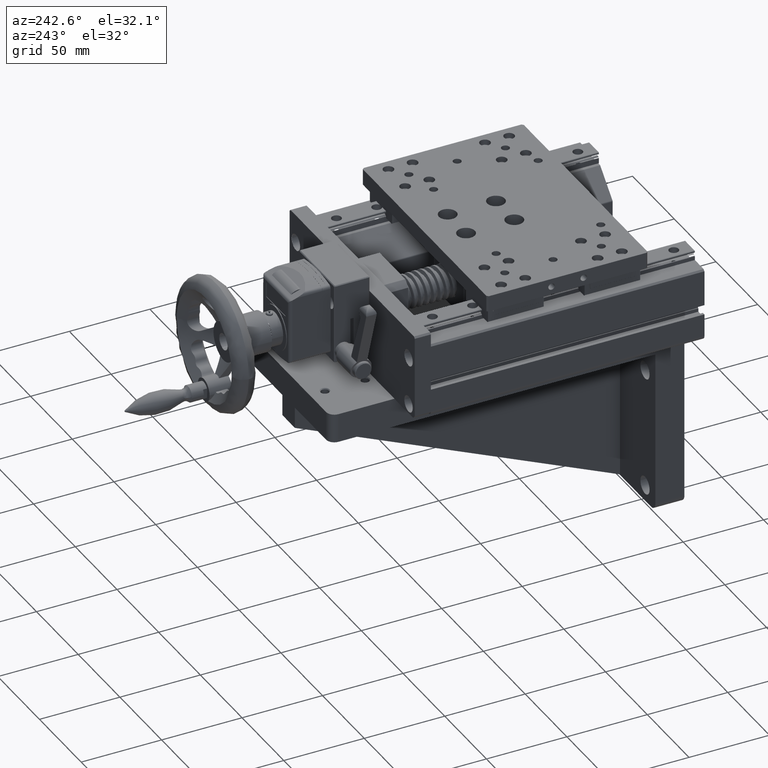
[diagram: clean part render]
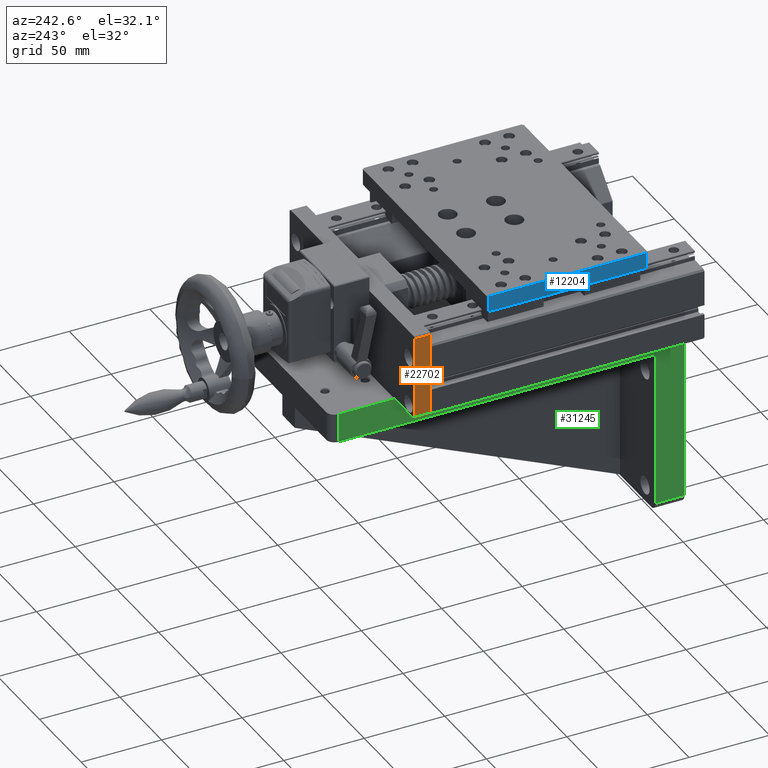
[diagram: same view with three faces highlighted in distinct colors, each labeled with its STEP entity id]
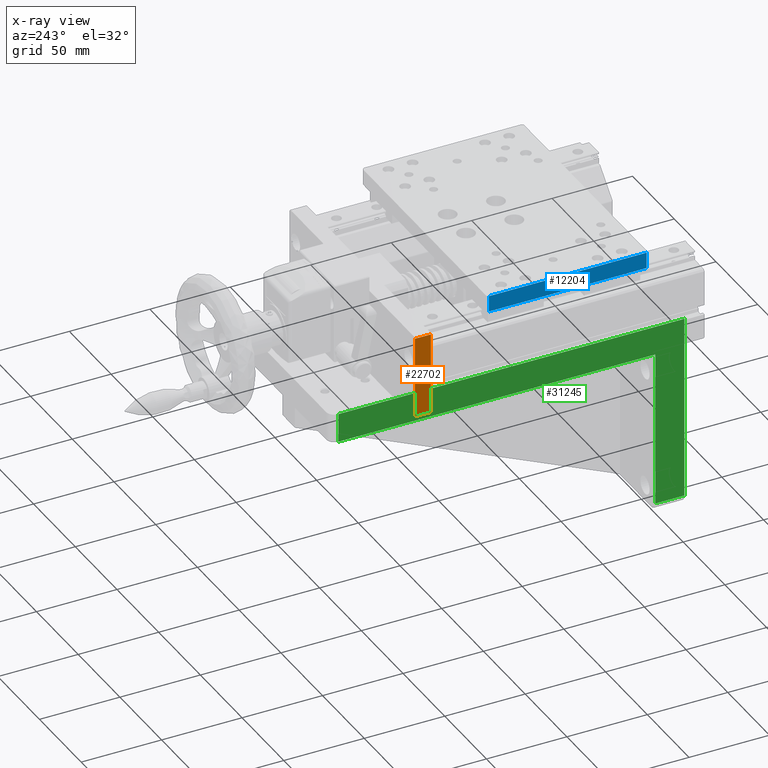
[diagram: x-ray of the same camera — body ghosted, the three highlighted faces saturated]
A machine part, auxiliary view with three faces highlighted in distinct colors.
The next image is the same camera in x-ray (body ghosted, the three faces saturated) — at least one of them is partly hidden behind the body in this view.
Their STEP definitions:

[orange] entity #22702 — the highlighted planar face has unit normal (1, -0, -0).
#351 = LINE ( 'NONE', #25956, #30585 ) ;
#1825 = CARTESIAN_POINT ( 'NONE',  ( -98.07974840947392181, 55.78653025440394941, 113.0000000000066507 ) ) ;
#3375 = LINE ( 'NONE', #11301, #24114 ) ;
#4613 = EDGE_CURVE ( 'NONE', #12254, #27577, #3375, .T. ) ;
#4894 = DIRECTION ( 'NONE',  ( 1.168057872504559325E-13, -2.402889340614262620E-16, 1.000000000000000000 ) ) ;
#5299 = CARTESIAN_POINT ( 'NONE',  ( -98.07974840947983353, 65.78653025440397073, 62.50000000001065814 ) ) ;
#5486 = CARTESIAN_POINT ( 'NONE',  ( -98.07974840947983353, 65.78653025440397073, 62.50000000001065814 ) ) ;
#6080 = EDGE_LOOP ( 'NONE', ( #14669, #21399, #23317, #12963 ) ) ;
#6585 = EDGE_CURVE ( 'NONE', #12254, #21139, #10415, .T. ) ;
#7882 = DIRECTION ( 'NONE',  ( 8.967242173589449006E-16, 1.000000000000000000, 3.823650429959166134E-16 ) ) ;
#9394 = VECTOR ( 'NONE', #7882, 1000.000000000000000 ) ;
#10415 = LINE ( 'NONE', #20692, #9394 ) ;
#10553 = CARTESIAN_POINT ( 'NONE',  ( -98.07974840947392181, 65.78653025440395652, 113.0000000000066507 ) ) ;
#11040 = VECTOR ( 'NONE', #12727, 1000.000000000000000 ) ;
#11301 = CARTESIAN_POINT ( 'NONE',  ( -98.07974840947983353, 55.78653025440396362, 62.50000000001065814 ) ) ;
#12254 = VERTEX_POINT ( 'NONE', #1825 ) ;
#12618 = DIRECTION ( 'NONE',  ( 8.967242173589449006E-16, 1.000000000000000000, 3.823650429959166134E-16 ) ) ;
#12622 = PLANE ( 'NONE',  #27832 ) ;
#12727 = DIRECTION ( 'NONE',  ( -1.168057872504559325E-13, 2.402889340614262620E-16, -1.000000000000000000 ) ) ;
#12963 = ORIENTED_EDGE ( 'NONE', *, *, #6585, .T. ) ;
#14669 = ORIENTED_EDGE ( 'NONE', *, *, #21144, .T. ) ;
#17386 = FACE_OUTER_BOUND ( 'NONE', #6080, .T. ) ;
#19194 = VERTEX_POINT ( 'NONE', #5299 ) ;
#19922 = DIRECTION ( 'NONE',  ( 1.000000000000000000, -6.306254620285602383E-16, -1.168057872504559325E-13 ) ) ;
#20692 = CARTESIAN_POINT ( 'NONE',  ( -98.07974840947392181, 55.78653025440394941, 113.0000000000066507 ) ) ;
#20834 = LINE ( 'NONE', #5486, #11040 ) ;
#21139 = VERTEX_POINT ( 'NONE', #10553 ) ;
#21144 = EDGE_CURVE ( 'NONE', #21139, #19194, #20834, .T. ) ;
#21399 = ORIENTED_EDGE ( 'NONE', *, *, #26273, .F. ) ;
#21589 = DIRECTION ( 'NONE',  ( -1.168057872504559325E-13, 2.402889340614262620E-16, -1.000000000000000000 ) ) ;
#22702 = ADVANCED_FACE ( 'NONE', ( #17386 ), #12622, .F. ) ;
#23317 = ORIENTED_EDGE ( 'NONE', *, *, #4613, .F. ) ;
#24114 = VECTOR ( 'NONE', #21589, 1000.000000000000000 ) ;
#25956 = CARTESIAN_POINT ( 'NONE',  ( -98.07974840947983353, 55.78653025440396362, 62.50000000001065814 ) ) ;
#26273 = EDGE_CURVE ( 'NONE', #27577, #19194, #351, .T. ) ;
#27577 = VERTEX_POINT ( 'NONE', #31188 ) ;
#27832 = AXIS2_PLACEMENT_3D ( 'NONE', #30522, #19922, #4894 ) ;
#30522 = CARTESIAN_POINT ( 'NONE',  ( -98.07974840947983353, 55.78653025440396362, 62.50000000001065814 ) ) ;
#30585 = VECTOR ( 'NONE', #12618, 1000.000000000000000 ) ;
#31188 = CARTESIAN_POINT ( 'NONE',  ( -98.07974840947983353, 55.78653025440396362, 62.50000000001065814 ) ) ;

[blue] entity #12204 — the highlighted planar face has unit normal (-1, 0, 0).
#381 = CARTESIAN_POINT ( 'NONE',  ( -98.07974840947704820, -17.21346974559805076, 122.5000000000011369 ) ) ;
#623 = CARTESIAN_POINT ( 'NONE',  ( -98.07974840947704820, -19.21346974559804721, 122.5000000000011795 ) ) ;
#1111 = LINE ( 'NONE', #3134, #22504 ) ;
#1163 = CARTESIAN_POINT ( 'NONE',  ( -98.07974840947710504, -78.21346974088609727, 117.5000000000011795 ) ) ;
#1459 = DIRECTION ( 'NONE',  ( 0.000000000000000000, -1.000000000000000000, 0.000000000000000000 ) ) ;
#1983 = FACE_BOUND ( 'NONE', #24734, .T. ) ;
#2120 = VERTEX_POINT ( 'NONE', #10566 ) ;
#2124 = ORIENTED_EDGE ( 'NONE', *, *, #9405, .F. ) ;
#2910 = EDGE_CURVE ( 'NONE', #5080, #22969, #10086, .T. ) ;
#3134 = CARTESIAN_POINT ( 'NONE',  ( -98.07974840947700557, 20.78653025440195989, 127.5000000000011937 ) ) ;
#3312 = EDGE_CURVE ( 'NONE', #30294, #13736, #1111, .T. ) ;
#3704 = DIRECTION ( 'NONE',  ( -1.007490921181384814E-16, -1.000000000000000000, -1.283222775569893497E-16 ) ) ;
#4329 = FACE_OUTER_BOUND ( 'NONE', #8429, .T. ) ;
#5080 = VERTEX_POINT ( 'NONE', #19015 ) ;
#6274 = EDGE_CURVE ( 'NONE', #15080, #2120, #23635, .T. ) ;
#6946 = ORIENTED_EDGE ( 'NONE', *, *, #19906, .F. ) ;
#7344 = DIRECTION ( 'NONE',  ( -1.000000000000000000, 1.007490921181371502E-16, 1.038393218549974683E-14 ) ) ;
#8429 = EDGE_LOOP ( 'NONE', ( #30055, #30338, #12374, #26933 ) ) ;
#8736 = CARTESIAN_POINT ( 'NONE',  ( -98.07974840947704820, -37.21346974559804721, 122.5000000000011369 ) ) ;
#9234 = DIRECTION ( 'NONE',  ( -1.000000000000000000, -7.380583014590811651E-17, 1.038393218549974683E-14 ) ) ;
#9405 = EDGE_CURVE ( 'NONE', #22969, #5080, #32047, .T. ) ;
#9497 = CIRCLE ( 'NONE', #24048, 1.999999999999994893 ) ;
#10086 = CIRCLE ( 'NONE', #12765, 1.999999999999994893 ) ;
#10274 = CARTESIAN_POINT ( 'NONE',  ( -98.07974840947700557, -78.21346974088609727, 127.5000000000011653 ) ) ;
#10566 = CARTESIAN_POINT ( 'NONE',  ( -98.07974840947710504, -78.21346974088609727, 117.5000000000011795 ) ) ;
#10891 = DIRECTION ( 'NONE',  ( 0.000000000000000000, -1.000000000000000000, 0.000000000000000000 ) ) ;
#11031 = EDGE_CURVE ( 'NONE', #30294, #15080, #19284, .T. ) ;
#11122 = VECTOR ( 'NONE', #31391, 1000.000000000000000 ) ;
#11419 = DIRECTION ( 'NONE',  ( 1.035198053686898557E-14, -1.283222775570023906E-16, 1.000000000000000000 ) ) ;
#11542 = CARTESIAN_POINT ( 'NONE',  ( -98.07974840947710504, 19.78653024969000640, 117.5000000000011937 ) ) ;
#12156 = AXIS2_PLACEMENT_3D ( 'NONE', #623, #23400, #10891 ) ;
#12204 = ADVANCED_FACE ( 'NONE', ( #1983, #22056, #4329 ), #14575, .T. ) ;
#12374 = ORIENTED_EDGE ( 'NONE', *, *, #6274, .T. ) ;
#12765 = AXIS2_PLACEMENT_3D ( 'NONE', #29849, #17048, #19408 ) ;
#13736 = VERTEX_POINT ( 'NONE', #10274 ) ;
#13751 = CIRCLE ( 'NONE', #12156, 1.999999999999994893 ) ;
#13837 = CARTESIAN_POINT ( 'NONE',  ( -98.07974840947710504, 19.78653024969000640, 117.5000000000011937 ) ) ;
#14575 = PLANE ( 'NONE',  #25187 ) ;
#14826 = VERTEX_POINT ( 'NONE', #30274 ) ;
#15080 = VERTEX_POINT ( 'NONE', #11542 ) ;
#15474 = EDGE_CURVE ( 'NONE', #2120, #13736, #32136, .T. ) ;
#15664 = ORIENTED_EDGE ( 'NONE', *, *, #2910, .F. ) ;
#17048 = DIRECTION ( 'NONE',  ( -1.000000000000000000, -7.380583014590811651E-17, 1.038393218549974683E-14 ) ) ;
#18568 = ORIENTED_EDGE ( 'NONE', *, *, #22026, .F. ) ;
#18721 = CARTESIAN_POINT ( 'NONE',  ( -98.07974840947710504, 20.78653025440195989, 117.5000000000011937 ) ) ;
#18794 = DIRECTION ( 'NONE',  ( -1.007490921181384814E-16, -1.000000000000000000, -1.283222775569893497E-16 ) ) ;
#19015 = CARTESIAN_POINT ( 'NONE',  ( -98.07974840947704820, -41.21346974559804011, 122.5000000000011795 ) ) ;
#19284 = LINE ( 'NONE', #13837, #11122 ) ;
#19408 = DIRECTION ( 'NONE',  ( 0.000000000000000000, -1.000000000000000000, 0.000000000000000000 ) ) ;
#19531 = DIRECTION ( 'NONE',  ( 0.000000000000000000, -1.000000000000000000, 0.000000000000000000 ) ) ;
#19906 = EDGE_CURVE ( 'NONE', #14826, #30207, #13751, .T. ) ;
#21836 = CARTESIAN_POINT ( 'NONE',  ( -98.07974840947704820, -39.21346974559804011, 122.5000000000011795 ) ) ;
#22026 = EDGE_CURVE ( 'NONE', #30207, #14826, #9497, .T. ) ;
#22056 = FACE_BOUND ( 'NONE', #32258, .T. ) ;
#22169 = DIRECTION ( 'NONE',  ( -1.000000000000000000, -7.380583014590811651E-17, 1.038393218549974683E-14 ) ) ;
#22389 = AXIS2_PLACEMENT_3D ( 'NONE', #21836, #22169, #1459 ) ;
#22504 = VECTOR ( 'NONE', #18794, 1000.000000000000000 ) ;
#22969 = VERTEX_POINT ( 'NONE', #8736 ) ;
#23400 = DIRECTION ( 'NONE',  ( -1.000000000000000000, -7.380583014590811651E-17, 1.038393218549974683E-14 ) ) ;
#23635 = LINE ( 'NONE', #18721, #26216 ) ;
#24048 = AXIS2_PLACEMENT_3D ( 'NONE', #32319, #9234, #19531 ) ;
#24734 = EDGE_LOOP ( 'NONE', ( #6946, #18568 ) ) ;
#25073 = CARTESIAN_POINT ( 'NONE',  ( -98.07974840947710504, 20.78653025440195989, 117.5000000000011937 ) ) ;
#25187 = AXIS2_PLACEMENT_3D ( 'NONE', #25073, #7344, #27787 ) ;
#26216 = VECTOR ( 'NONE', #3704, 1000.000000000000000 ) ;
#26933 = ORIENTED_EDGE ( 'NONE', *, *, #15474, .T. ) ;
#27787 = DIRECTION ( 'NONE',  ( -1.007490921181384814E-16, -1.000000000000000000, -1.283222775569893497E-16 ) ) ;
#29266 = VECTOR ( 'NONE', #11419, 1000.000000000000000 ) ;
#29345 = CARTESIAN_POINT ( 'NONE',  ( -98.07974840947700557, 19.78653024969000640, 127.5000000000011937 ) ) ;
#29849 = CARTESIAN_POINT ( 'NONE',  ( -98.07974840947704820, -39.21346974559804011, 122.5000000000011795 ) ) ;
#30055 = ORIENTED_EDGE ( 'NONE', *, *, #3312, .F. ) ;
#30207 = VERTEX_POINT ( 'NONE', #381 ) ;
#30274 = CARTESIAN_POINT ( 'NONE',  ( -98.07974840947704820, -21.21346974559804011, 122.5000000000011795 ) ) ;
#30294 = VERTEX_POINT ( 'NONE', #29345 ) ;
#30338 = ORIENTED_EDGE ( 'NONE', *, *, #11031, .T. ) ;
#31391 = DIRECTION ( 'NONE',  ( -1.035198053686898557E-14, 1.283222775570023906E-16, -1.000000000000000000 ) ) ;
#32047 = CIRCLE ( 'NONE', #22389, 1.999999999999994893 ) ;
#32136 = LINE ( 'NONE', #1163, #29266 ) ;
#32258 = EDGE_LOOP ( 'NONE', ( #15664, #2124 ) ) ;
#32319 = CARTESIAN_POINT ( 'NONE',  ( -98.07974840947704820, -19.21346974559804721, 122.5000000000011795 ) ) ;

[green] entity #31245 — the highlighted planar face has unit normal (-1, 0, 0).
#298 = EDGE_CURVE ( 'NONE', #17257, #11732, #32737, .T. ) ;
#613 = CARTESIAN_POINT ( 'NONE',  ( -73.07974840947967721, -114.7134697455980046, 42.00000000000051870 ) ) ;
#886 = CARTESIAN_POINT ( 'NONE',  ( -73.07974840947950668, -114.7134697455980046, 60.00000000000051870 ) ) ;
#1867 = CARTESIAN_POINT ( 'NONE',  ( -73.07974840948070039, -114.7134697455980046, -54.99999999999949551 ) ) ;
#2230 = CARTESIAN_POINT ( 'NONE',  ( -73.07974840947967721, 100.2865302544019812, 42.00000000000051870 ) ) ;
#2576 = CARTESIAN_POINT ( 'NONE',  ( -73.07974840947950668, -114.7134697455980046, 60.00000000000051870 ) ) ;
#2815 = LINE ( 'NONE', #613, #33268 ) ;
#4011 = ORIENTED_EDGE ( 'NONE', *, *, #11006, .T. ) ;
#4501 = EDGE_CURVE ( 'NONE', #11314, #11732, #7253, .T. ) ;
#4809 = ORIENTED_EDGE ( 'NONE', *, *, #4501, .F. ) ;
#4974 = ORIENTED_EDGE ( 'NONE', *, *, #24668, .T. ) ;
#5207 = VECTOR ( 'NONE', #33030, 1000.000000000000000 ) ;
#5403 = EDGE_CURVE ( 'NONE', #11314, #24321, #2815, .T. ) ;
#6790 = CARTESIAN_POINT ( 'NONE',  ( -73.07974840947950668, -114.7134697455980046, 60.00000000000051870 ) ) ;
#6837 = VECTOR ( 'NONE', #18904, 1000.000000000000000 ) ;
#7253 = LINE ( 'NONE', #2230, #5207 ) ;
#10719 = DIRECTION ( 'NONE',  ( -0.000000000000000000, -1.000000000000000000, -0.000000000000000000 ) ) ;
#11006 = EDGE_CURVE ( 'NONE', #32905, #20629, #26689, .T. ) ;
#11176 = CARTESIAN_POINT ( 'NONE',  ( -73.07974840948070039, -114.7134697455980046, -54.99999999999949551 ) ) ;
#11314 = VERTEX_POINT ( 'NONE', #23472 ) ;
#11732 = VERTEX_POINT ( 'NONE', #30614 ) ;
#12326 = VECTOR ( 'NONE', #23836, 1000.000000000000000 ) ;
#12646 = DIRECTION ( 'NONE',  ( -1.000000000000000000, 0.000000000000000000, 1.047444401652940007E-14 ) ) ;
#17101 = DIRECTION ( 'NONE',  ( 0.000000000000000000, 1.000000000000000000, 0.000000000000000000 ) ) ;
#17257 = VERTEX_POINT ( 'NONE', #32464 ) ;
#17812 = DIRECTION ( 'NONE',  ( -1.047444401652940007E-14, -0.000000000000000000, -1.000000000000000000 ) ) ;
#18904 = DIRECTION ( 'NONE',  ( 1.047444401652940007E-14, 0.000000000000000000, 1.000000000000000000 ) ) ;
#19335 = EDGE_LOOP ( 'NONE', ( #4974, #30511, #4809, #31368, #22758, #4011 ) ) ;
#19424 = CARTESIAN_POINT ( 'NONE',  ( -73.07974840948070039, -96.71346974559799037, -54.99999999999949551 ) ) ;
#20544 = VECTOR ( 'NONE', #17812, 1000.000000000000000 ) ;
#20629 = VERTEX_POINT ( 'NONE', #1867 ) ;
#22153 = CARTESIAN_POINT ( 'NONE',  ( -73.07974840947970563, -96.71346974559799037, 42.00000000000051870 ) ) ;
#22758 = ORIENTED_EDGE ( 'NONE', *, *, #28107, .T. ) ;
#22970 = DIRECTION ( 'NONE',  ( 1.047444401652940007E-14, 0.000000000000000000, 1.000000000000000000 ) ) ;
#23472 = CARTESIAN_POINT ( 'NONE',  ( -73.07974840947967721, 100.2865302544019812, 42.00000000000051870 ) ) ;
#23836 = DIRECTION ( 'NONE',  ( -0.000000000000000000, -1.000000000000000000, -0.000000000000000000 ) ) ;
#23989 = LINE ( 'NONE', #886, #6837 ) ;
#24321 = VERTEX_POINT ( 'NONE', #22153 ) ;
#24668 = EDGE_CURVE ( 'NONE', #20629, #17257, #23989, .T. ) ;
#25658 = PLANE ( 'NONE',  #28783 ) ;
#25733 = LINE ( 'NONE', #28110, #20544 ) ;
#26689 = LINE ( 'NONE', #11176, #12326 ) ;
#28107 = EDGE_CURVE ( 'NONE', #24321, #32905, #25733, .T. ) ;
#28110 = CARTESIAN_POINT ( 'NONE',  ( -73.07974840947950668, -96.71346974559799037, 60.00000000000051870 ) ) ;
#28783 = AXIS2_PLACEMENT_3D ( 'NONE', #2576, #12646, #22970 ) ;
#30511 = ORIENTED_EDGE ( 'NONE', *, *, #298, .T. ) ;
#30614 = CARTESIAN_POINT ( 'NONE',  ( -73.07974840947950668, 100.2865302544019812, 60.00000000000051870 ) ) ;
#31205 = FACE_OUTER_BOUND ( 'NONE', #19335, .T. ) ;
#31245 = ADVANCED_FACE ( 'NONE', ( #31205 ), #25658, .T. ) ;
#31354 = VECTOR ( 'NONE', #17101, 1000.000000000000000 ) ;
#31368 = ORIENTED_EDGE ( 'NONE', *, *, #5403, .T. ) ;
#32464 = CARTESIAN_POINT ( 'NONE',  ( -73.07974840947950668, -114.7134697455980046, 60.00000000000051870 ) ) ;
#32737 = LINE ( 'NONE', #6790, #31354 ) ;
#32905 = VERTEX_POINT ( 'NONE', #19424 ) ;
#33030 = DIRECTION ( 'NONE',  ( 1.047444401652940007E-14, 0.000000000000000000, 1.000000000000000000 ) ) ;
#33268 = VECTOR ( 'NONE', #10719, 1000.000000000000000 ) ;